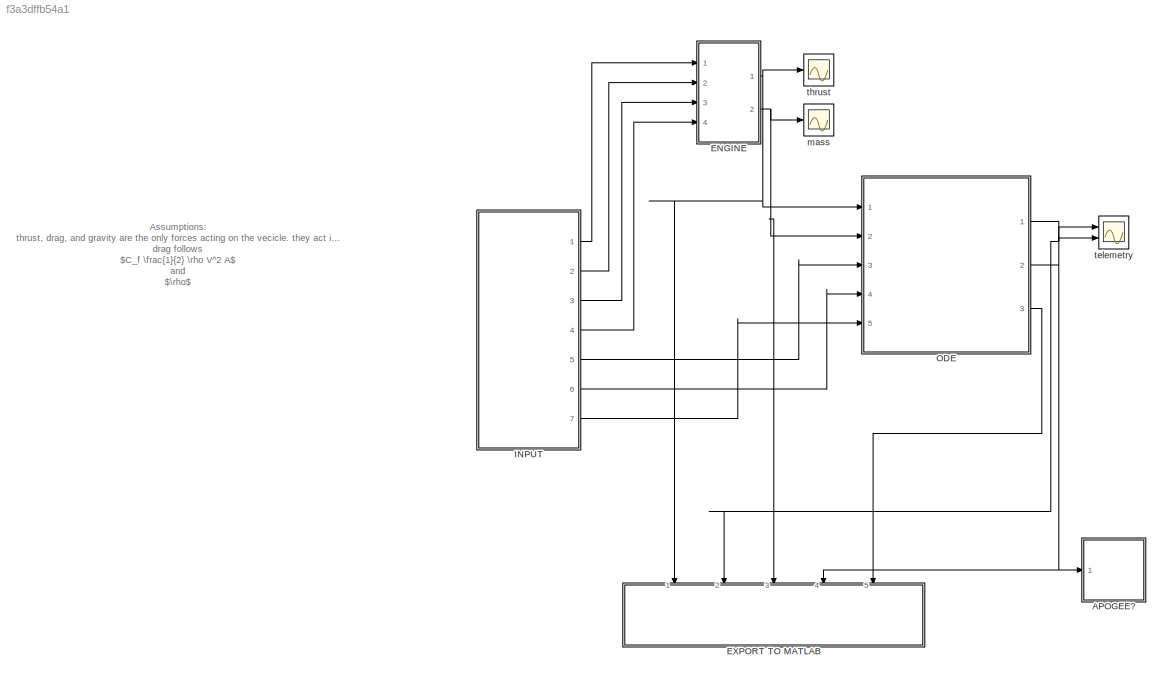
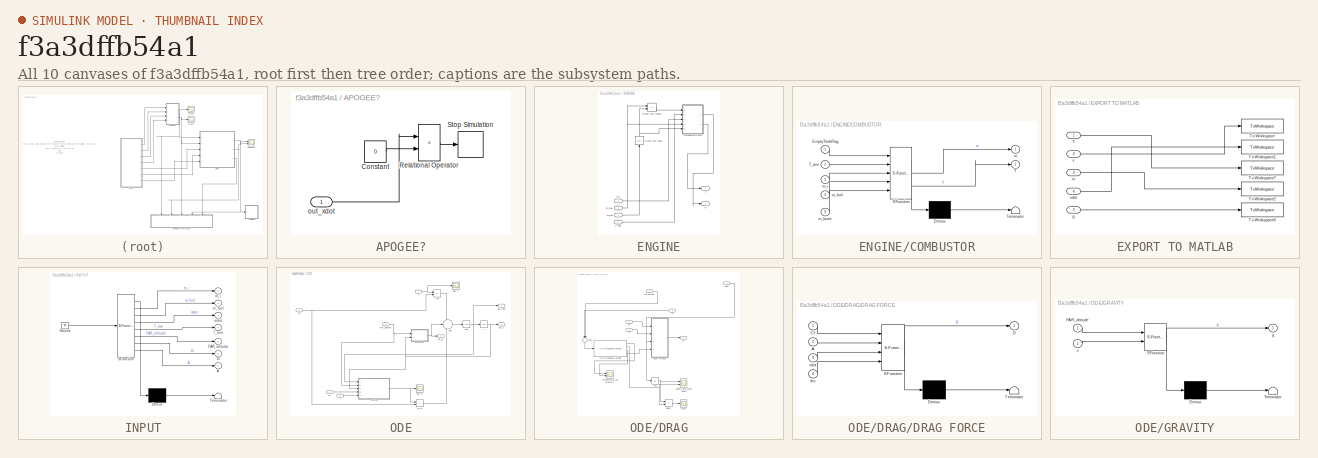
[diagram: thumbnail index - all 10 canvases of the model, root first then tree order]
MODEL slx_f3a3dffb54a1
KIND model
CONFIG AbsTol = auto
CONFIG EnableMultiTasking = off
CONFIG FixedStep = auto
CONFIG MaxStep = auto
CONFIG MinStep = auto
CONFIG RelTol = 1e-10
CONFIG SampleTimeConstraint = Unconstrained
CONFIG SolverName = VariableStepAuto
CONFIG StartTime = 0.0
CONFIG StopTime = 25
BLOCK [SubSystem] APOGEE?
  NameLocation = right
  Ports = [1]
  RequestExecContextInheritance = off
BLOCK [Constant] APOGEE?/Constant
  Value = 0
BLOCK [RelationalOperator] APOGEE?/Relational Operator
  InputSameDT = off
  Operator = <
  OutDataTypeStr = boolean
  Ports = [2, 1]
  RndMeth = Simplest
BLOCK [Stop] APOGEE?/Stop Simulation
BLOCK [Inport] APOGEE?/out_xdot
BLOCK [SubSystem] ENGINE
  Ports = [4, 2]
  RequestExecContextInheritance = off
BLOCK [Integrator] ENGINE/Burnt fuel mass
  NameLocation = right
  Ports = [1, 1]
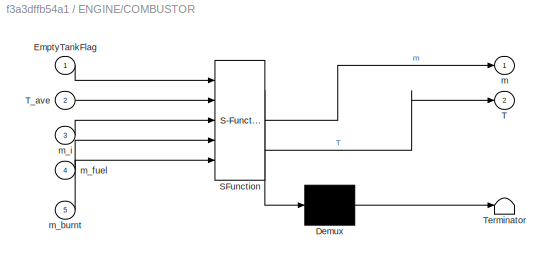
BLOCK [SubSystem] ENGINE/COMBUSTOR
  ErrorFcn = Stateflow.Translate.translate
  PermitHierarchicalResolution = ExplicitOnly
  Ports = [5, 2]
  RequestExecContextInheritance = off
  SFBlockType = MATLAB Function
  TreatAsAtomicUnit = on
BLOCK [Demux] ENGINE/COMBUSTOR/ Demux 
  Outputs = 1
  Ports = [1, 1]
BLOCK [S-Function] ENGINE/COMBUSTOR/ SFunction 
  EnableBusSupport = on
  FunctionName = sf_sfun
  PortCounts = [5 3]
  Ports = [5, 3]
  SFcnIsStateOwnerBlock = off
  SFunctionDeploymentMode = off
  Tag = Stateflow S-Function 1
BLOCK [Terminator] ENGINE/COMBUSTOR/ Terminator 
BLOCK [Inport] ENGINE/COMBUSTOR/EmptyTankFlag
BLOCK [Outport] ENGINE/COMBUSTOR/T
  Port = 2
BLOCK [Inport] ENGINE/COMBUSTOR/T_ave
  Port = 2
BLOCK [Outport] ENGINE/COMBUSTOR/m
BLOCK [Inport] ENGINE/COMBUSTOR/m_burnt
  Port = 5
BLOCK [Inport] ENGINE/COMBUSTOR/m_fuel
  Port = 4
BLOCK [Inport] ENGINE/COMBUSTOR/m_i
  Port = 3
BLOCK [RelationalOperator] ENGINE/Empty fuel tanks?
  InputSameDT = off
  Operator = <=
  OutDataTypeStr = boolean
  Ports = [2, 1]
  RndMeth = Simplest
BLOCK [Outport] ENGINE/T
BLOCK [Inport] ENGINE/T_ave
  Port = 4
BLOCK [Outport] ENGINE/m
  Port = 2
BLOCK [Inport] ENGINE/m_dot
  Port = 3
BLOCK [Inport] ENGINE/m_fuel
  Port = 2
BLOCK [Inport] ENGINE/m_i
BLOCK [SubSystem] EXPORT TO MATLAB
  Ports = [5]
  RequestExecContextInheritance = off
BLOCK [Inport] EXPORT TO MATLAB/T
BLOCK [ToWorkspace] EXPORT TO MATLAB/To Workspace
  FixptAsFi = on
  MaxDataPoints = inf
  Ports = [1]
  SampleTime = -1
  SaveFormat = Timeseries
  VariableName = x
BLOCK [ToWorkspace] EXPORT TO MATLAB/To Workspace1
  FixptAsFi = on
  MaxDataPoints = inf
  Ports = [1]
  SampleTime = -1
  SaveFormat = Timeseries
  VariableName = xdot
BLOCK [ToWorkspace] EXPORT TO MATLAB/To Workspace2
  FixptAsFi = on
  MaxDataPoints = inf
  Ports = [1]
  SampleTime = -1
  SaveFormat = Timeseries
  VariableName = m
BLOCK [ToWorkspace] EXPORT TO MATLAB/To Workspace6
  FixptAsFi = on
  MaxDataPoints = inf
  Ports = [1]
  SampleTime = -1
  SaveFormat = Timeseries
  VariableName = g
BLOCK [ToWorkspace] EXPORT TO MATLAB/To Workspace7
  FixptAsFi = on
  MaxDataPoints = inf
  Ports = [1]
  SampleTime = -1
  SaveFormat = Timeseries
  VariableName = T
BLOCK [Inport] EXPORT TO MATLAB/g
  Port = 5
BLOCK [Inport] EXPORT TO MATLAB/m
  Port = 3
BLOCK [Inport] EXPORT TO MATLAB/x
  Port = 2
BLOCK [Inport] EXPORT TO MATLAB/xdot
  Port = 4
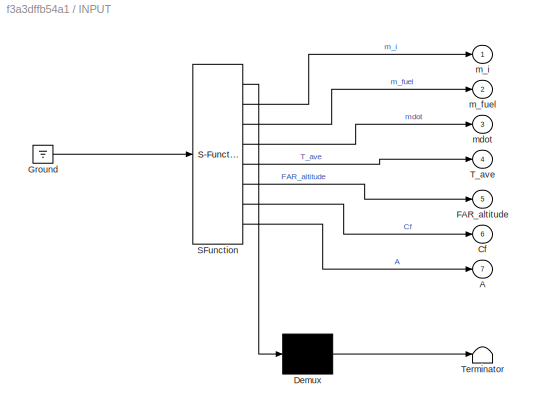
BLOCK [SubSystem] INPUT
  ErrorFcn = Stateflow.Translate.translate
  PermitHierarchicalResolution = ExplicitOnly
  Ports = [0, 7]
  RequestExecContextInheritance = off
  SFBlockType = MATLAB Function
  TreatAsAtomicUnit = on
BLOCK [Demux] INPUT/ Demux 
  Outputs = 1
  Ports = [1, 1]
BLOCK [Ground] INPUT/ Ground 
BLOCK [S-Function] INPUT/ SFunction 
  EnableBusSupport = on
  FunctionName = sf_sfun
  PortCounts = [1 8]
  Ports = [1, 8]
  SFcnIsStateOwnerBlock = off
  SFunctionDeploymentMode = off
  Tag = Stateflow S-Function 2
BLOCK [Terminator] INPUT/ Terminator 
BLOCK [Outport] INPUT/A
  Port = 7
BLOCK [Outport] INPUT/Cf
  Port = 6
BLOCK [Outport] INPUT/FAR_altitude
  Port = 5
BLOCK [Outport] INPUT/T_ave
  Port = 4
BLOCK [Outport] INPUT/m_fuel
  Port = 2
BLOCK [Outport] INPUT/m_i
BLOCK [Outport] INPUT/mdot
  Port = 3
BLOCK [SubSystem] ODE
  Ports = [5, 3]
  RequestExecContextInheritance = off
BLOCK [Inport] ODE/A
  Port = 5
BLOCK [Inport] ODE/Cf
  Port = 4
BLOCK [Product] ODE/D//m
  Inputs = */
  Ports = [2, 1]
BLOCK [SubSystem] ODE/DRAG
  Ports = [5, 1]
  RequestExecContextInheritance = off
BLOCK [Inport] ODE/DRAG/A
  Port = 5
BLOCK [Abs] ODE/DRAG/Abs
  SaturateOnIntegerOverflow = off
BLOCK [Inport] ODE/DRAG/Cf
  Port = 4
BLOCK [Outport] ODE/DRAG/D
BLOCK [SubSystem] ODE/DRAG/DRAG FORCE
  ErrorFcn = Stateflow.Translate.translate
  PermitHierarchicalResolution = ExplicitOnly
  Ports = [4, 1]
  RequestExecContextInheritance = off
  SFBlockType = MATLAB Function
  TreatAsAtomicUnit = on
BLOCK [Demux] ODE/DRAG/DRAG FORCE/ Demux 
  Outputs = 1
  Ports = [1, 1]
BLOCK [S-Function] ODE/DRAG/DRAG FORCE/ SFunction 
  EnableBusSupport = on
  FunctionName = sf_sfun
  PortCounts = [4 2]
  Ports = [4, 2]
  SFcnIsStateOwnerBlock = off
  SFunctionDeploymentMode = off
  Tag = Stateflow S-Function 4
BLOCK [Terminator] ODE/DRAG/DRAG FORCE/ Terminator 
BLOCK [Inport] ODE/DRAG/DRAG FORCE/A
  Port = 2
BLOCK [Inport] ODE/DRAG/DRAG FORCE/Cf
BLOCK [Outport] ODE/DRAG/DRAG FORCE/D
BLOCK [Inport] ODE/DRAG/DRAG FORCE/rho
  Port = 4
BLOCK [Inport] ODE/DRAG/DRAG FORCE/xdot
  Port = 3
BLOCK [Product] ODE/DRAG/Divide
  Inputs = */
  Ports = [2, 1]
  RndMeth = Zero
  SaturateOnIntegerOverflow = on
BLOCK [Inport] ODE/DRAG/FAR altitude
  Port = 2
BLOCK [Reference] ODE/DRAG/ISA Atmosphere Model  REF=aerolibatmos2/ISA Atmosphere Model
  Ports = [1, 4]
  SourceBlock = aerolibatmos2/ISA Atmosphere Model
  SourceProductBaseCode = AE
  SourceType = International Standard Atmosphere Model
BLOCK [Sum] ODE/DRAG/Sum
  Inputs = |++
  NameLocation = left
  Ports = [2, 1]
BLOCK [Scope] ODE/DRAG/mach
  Floating = off
  NumInputPorts = 1
  Ports = [1]
  ScopeSpecificationString = Simulink.scopes.TimeScopeBlockCfg('CurrentConfiguration', extmgr.ConfigurationSet(extmgr.Configuration('Core','General UI',true),extmgr.Configuration('Core','Source UI',true),extmgr.Configuration('Sources','WiredSimulink',true,'DataLoggingVariableName','ScopeData3'),extmgr.Configuration('Visuals','Time Domain',true,'SerializedDisplays',{struct('MinYLimReal','-0.17606','MaxYLimReal','1.58452','YLab...<+1414ch>
BLOCK [Scope] ODE/DRAG/temperature and pressure
  Floating = off
  NumInputPorts = 2
  Ports = [2]
  ScopeSpecificationString = Simulink.scopes.TimeScopeBlockCfg('CurrentConfiguration', extmgr.ConfigurationSet(extmgr.Configuration('Core','General UI',true),extmgr.Configuration('Core','Source UI',true),extmgr.Configuration('Sources','WiredSimulink',true,'DataLoggingVariableName','ScopeData4'),extmgr.Configuration('Visuals','Time Domain',true,'SerializedDisplays',{struct('MinYLimReal','-10845.06546','MaxYLimReal','100244.489...<+1440ch>
BLOCK [Scope] ODE/DRAG/velocity and sound speed
  Floating = off
  NumInputPorts = 2
  Ports = [2]
  ScopeSpecificationString = Simulink.scopes.TimeScopeBlockCfg('CurrentConfiguration', extmgr.ConfigurationSet(extmgr.Configuration('Core','General UI',true),extmgr.Configuration('Core','Source UI',true),extmgr.Configuration('Sources','WiredSimulink',true,'DataLoggingVariableName','ScopeData2'),extmgr.Configuration('Visuals','Time Domain',true,'SerializedDisplays',{struct('MinYLimReal','-42.02124','MaxYLimReal','378.19118','Y...<+1397ch>
BLOCK [Inport] ODE/DRAG/x
  Port = 3
BLOCK [Inport] ODE/DRAG/xdot
BLOCK [Inport] ODE/FAR_altitude
  NameLocation = left
  Port = 3
BLOCK [SubSystem] ODE/GRAVITY
  ErrorFcn = Stateflow.Translate.translate
  PermitHierarchicalResolution = ExplicitOnly
  Ports = [2, 1]
  RequestExecContextInheritance = off
  SFBlockType = MATLAB Function
  TreatAsAtomicUnit = on
BLOCK [Demux] ODE/GRAVITY/ Demux 
  Outputs = 1
  Ports = [1, 1]
BLOCK [S-Function] ODE/GRAVITY/ SFunction 
  EnableBusSupport = on
  FunctionName = sf_sfun
  PortCounts = [2 2]
  Ports = [2, 2]
  SFcnIsStateOwnerBlock = off
  SFunctionDeploymentMode = off
  Tag = Stateflow S-Function 3
BLOCK [Terminator] ODE/GRAVITY/ Terminator 
BLOCK [Inport] ODE/GRAVITY/FAR_altitude
BLOCK [Outport] ODE/GRAVITY/g
BLOCK [Inport] ODE/GRAVITY/x
  Port = 2
BLOCK [Inport] ODE/T
BLOCK [Product] ODE/T//m
  Inputs = */
  Ports = [2, 1]
BLOCK [Inport] ODE/m
  Port = 2
BLOCK [Outport] ODE/out_g
  Port = 3
BLOCK [Outport] ODE/out_x
BLOCK [Outport] ODE/out_xdot
  Port = 2
BLOCK [Scope] ODE/plot D 
  Floating = off
  NumInputPorts = 1
  Ports = [1]
  ScopeSpecificationString = Simulink.scopes.TimeScopeBlockCfg('CurrentConfiguration', extmgr.ConfigurationSet(extmgr.Configuration('Core','General UI',true),extmgr.Configuration('Core','Source UI',true),extmgr.Configuration('Sources','WiredSimulink',true,'DataLoggingVariableName','ScopeData1'),extmgr.Configuration('Visuals','Time Domain',true,'SerializedDisplays',{struct('MinYLimReal','-246.2191','MaxYLimReal','2215.97191','...<+1409ch>
BLOCK [Scope] ODE/plot T
  Floating = off
  NumInputPorts = 1
  Ports = [1]
  ScopeSpecificationString = Simulink.scopes.TimeScopeBlockCfg('CurrentConfiguration', extmgr.ConfigurationSet(extmgr.Configuration('Core','General UI',true),extmgr.Configuration('Core','Source UI',true),extmgr.Configuration('Sources','WiredSimulink',true,'DataLoggingVariableName','ScopeData1'),extmgr.Configuration('Visuals','Time Domain',true,'SerializedDisplays',{struct('MinYLimReal','-489.5','MaxYLimReal','4405.5','YLabelR...<+1382ch>
BLOCK [Integrator] ODE/x
  Ports = [1, 1]
BLOCK [Sum] ODE/xdd
  Inputs = +--
  NameLocation = top
  Ports = [3, 1]
BLOCK [Integrator] ODE/xdot
  Ports = [1, 1]
BLOCK [Scope] mass
  Floating = off
  NumInputPorts = 1
  Ports = [1]
  ScopeSpecificationString = Simulink.scopes.TimeScopeBlockCfg('CurrentConfiguration', extmgr.ConfigurationSet(extmgr.Configuration('Core','General UI',true),extmgr.Configuration('Core','Source UI',true),extmgr.Configuration('Sources','WiredSimulink',true,'DataLoggingVariableName','ScopeData1'),extmgr.Configuration('Visuals','Time Domain',true,'SerializedDisplays',{struct('MinYLimReal','59.87414','MaxYLimReal','92.64617','YLa...<+1450ch>
BLOCK [Scope] telemetry
  Floating = off
  NumInputPorts = 2
  Ports = [2]
  ScopeSpecificationString = Simulink.scopes.TimeScopeBlockCfg('CurrentConfiguration', extmgr.ConfigurationSet(extmgr.Configuration('Core','General UI',true),extmgr.Configuration('Core','Source UI',true),extmgr.Configuration('Sources','WiredSimulink',true),extmgr.Configuration('Visuals','Time Domain',true,'SerializedDisplays',{struct('MinYLimReal','-267.42483','MaxYLimReal','2406.82344','YLabelReal','','MinYLimMag',' 0.00000'...<+1453ch>
BLOCK [Scope] thrust
  Floating = off
  NumInputPorts = 1
  Ports = [1]
  ScopeSpecificationString = Simulink.scopes.TimeScopeBlockCfg('CurrentConfiguration', extmgr.ConfigurationSet(extmgr.Configuration('Core','General UI',true),extmgr.Configuration('Core','Source UI',true),extmgr.Configuration('Sources','WiredSimulink',true,'DataLoggingVariableName','ScopeData2'),extmgr.Configuration('Visuals','Time Domain',true,'SerializedDisplays',{struct('MinYLimReal','-489.5','MaxYLimReal','4405.5','YLabelR...<+1390ch>
ANNOTATION (root): Assumptions: thrust, drag, and gravity are the only forces acting on the vecicle. they act in one direction that we call x drag follows $C_f \frac{1}{2} \rho V^2 A$ and $\rho$ is determined with the Standard International Atmosphere data thrust is a step function gravity is NOT constant mass is NOT constant but decreases at a constant rate
LINE APOGEE?/Constant:1 -> APOGEE?/Relational Operator:2
LINE APOGEE?/Relational Operator:1 -> APOGEE?/Stop Simulation:1
LINE APOGEE?/out_xdot:1 -> APOGEE?/Relational Operator:1
NET ENGINE/Burnt fuel mass:1 -> ENGINE/COMBUSTOR:5, ENGINE/Empty fuel tanks?:2
LINE ENGINE/COMBUSTOR:1 -> ENGINE/m:1
LINE ENGINE/COMBUSTOR:2 -> ENGINE/T:1
LINE ENGINE/Empty fuel tanks?:1 -> ENGINE/COMBUSTOR:1
LINE ENGINE/T_ave:1 -> ENGINE/COMBUSTOR:2
LINE ENGINE/m_dot:1 -> ENGINE/Burnt fuel mass:1
NET ENGINE/m_fuel:1 -> ENGINE/COMBUSTOR:4, ENGINE/Empty fuel tanks?:1
LINE ENGINE/m_i:1 -> ENGINE/COMBUSTOR:3
NET ENGINE:1 -> EXPORT TO MATLAB:1, ODE:1, thrust:1
NET ENGINE:2 -> EXPORT TO MATLAB:3, ODE:2, mass:1
LINE EXPORT TO MATLAB/T:1 -> EXPORT TO MATLAB/To Workspace7:1
LINE EXPORT TO MATLAB/g:1 -> EXPORT TO MATLAB/To Workspace6:1
LINE EXPORT TO MATLAB/m:1 -> EXPORT TO MATLAB/To Workspace2:1
LINE EXPORT TO MATLAB/x:1 -> EXPORT TO MATLAB/To Workspace:1
LINE EXPORT TO MATLAB/xdot:1 -> EXPORT TO MATLAB/To Workspace1:1
LINE INPUT:1 -> ENGINE:1
LINE INPUT:2 -> ENGINE:2
LINE INPUT:3 -> ENGINE:3
LINE INPUT:4 -> ENGINE:4
LINE INPUT:5 -> ODE:3
LINE INPUT:6 -> ODE:4
LINE INPUT:7 -> ODE:5
LINE ODE/A:1 -> ODE/DRAG:5
LINE ODE/Cf:1 -> ODE/DRAG:4
LINE ODE/D//m:1 -> ODE/xdd:3
LINE ODE/DRAG/A:1 -> ODE/DRAG/DRAG FORCE:2
NET ODE/DRAG/Abs:1 -> ODE/DRAG/Divide:1, ODE/DRAG/velocity and sound speed:1
LINE ODE/DRAG/Cf:1 -> ODE/DRAG/DRAG FORCE:1
LINE ODE/DRAG/DRAG FORCE:1 -> ODE/DRAG/D:1
LINE ODE/DRAG/Divide:1 -> ODE/DRAG/mach:1
LINE ODE/DRAG/FAR altitude:1 -> ODE/DRAG/Sum:2
LINE ODE/DRAG/ISA Atmosphere Model:1 -> ODE/DRAG/temperature and pressure:1
NET ODE/DRAG/ISA Atmosphere Model:2 -> ODE/DRAG/Divide:2, ODE/DRAG/velocity and sound speed:2
LINE ODE/DRAG/ISA Atmosphere Model:3 -> ODE/DRAG/temperature and pressure:2
LINE ODE/DRAG/ISA Atmosphere Model:4 -> ODE/DRAG/DRAG FORCE:4
LINE ODE/DRAG/Sum:1 -> ODE/DRAG/ISA Atmosphere Model:1
LINE ODE/DRAG/x:1 -> ODE/DRAG/Sum:1
NET ODE/DRAG/xdot:1 -> ODE/DRAG/Abs:1, ODE/DRAG/DRAG FORCE:3
NET ODE/DRAG:1 -> ODE/D//m:1, ODE/plot D :1
NET ODE/FAR_altitude:1 -> ODE/DRAG:2, ODE/GRAVITY:1
NET ODE/GRAVITY:1 -> ODE/out_g:1, ODE/xdd:2
LINE ODE/T//m:1 -> ODE/xdd:1
NET ODE/T:1 -> ODE/T//m:1, ODE/plot T:1
NET ODE/m:1 -> ODE/D//m:2, ODE/T//m:2
NET ODE/x:1 -> ODE/DRAG:3, ODE/GRAVITY:2, ODE/out_x:1
LINE ODE/xdd:1 -> ODE/xdot:1
NET ODE/xdot:1 -> ODE/DRAG:1, ODE/out_xdot:1, ODE/x:1
NET ODE:1 -> EXPORT TO MATLAB:2, telemetry:1
NET ODE:2 -> APOGEE?:1, EXPORT TO MATLAB:4, telemetry:2
LINE ODE:3 -> EXPORT TO MATLAB:5
note: NET lines group one-source signal fan-out (src -> all destinations, sorted); 1:1 wires keep LINE
CHART ENGINE/COMBUSTOR states=1 transitions=1
  STATE_LABEL 'eML_blk_kernel()'
  STATE_LABEL 'SCRIPT:\nfunction [m,T] = fcn(EmptyTankFlag, T_ave, m_i, m_fuel, m_burnt)\nif EmptyTankFlag == 0\n    T = T_ave;\n    m = m_i - m_burnt;\nelse\n    T = 0;\n    m = m_i - m_fuel;\nend\n\nend\n'
CHART INPUT states=1 transitions=1
  STATE_LABEL 'eML_blk_kernel()'
  STATE_LABEL 'SCRIPT:\nfunction [m_i,m_fuel,mdot,T_ave,FAR_altitude,Cf,A] = fcn\n% m_i - initial vehicle mass (assumed constant)\n% m_fuel - fuel mass\n% mdot - mass flow rate\n% T_ave - average thrust\n% FAR_altitude - altitude at FAR\n% Cf - coefficient of friction of rocket\n% A - cross section of rocket\n\nm_i = 200*0.453592; % [kg]\nm_fuel = 34*0.453592; % [kg]\nT_ave = 880*4.45; % [N]\nISP = 151; % [kg] specific impul...<+186ch>'
CHART ODE/GRAVITY states=1 transitions=1
  STATE_LABEL 'eML_blk_kernel()'
  STATE_LABEL 'SCRIPT:\nfunction g = fcn(FAR_altitude,x)\n\nRE = 6378e3; % [m] earth sea level radius\nMu_E = 3.986e14; % [m3/s2] gravitational parameter of earth\n\nr = RE + FAR_altitude + x;\n\ng = Mu_E*r^(-2);\n\nend\n'
CHART ODE/DRAG/DRAG FORCE states=1 transitions=1
  STATE_LABEL 'eML_blk_kernel()'
  STATE_LABEL 'SCRIPT:\nfunction D = fcn(Cf,A,xdot,rho)\n% find current air density from International Standard Atmosphere \n\n% use drag equation\nD = Cf * (1/2) * rho * (xdot^2) * A;\n\n% make sure drag points in the right direction\nif xdot < 0\n    D = -D;\nend\n\nend\n'
CHART  states=0 transitions=0
CHART  states=0 transitions=0
CHART  states=0 transitions=0
CHART  states=0 transitions=0
